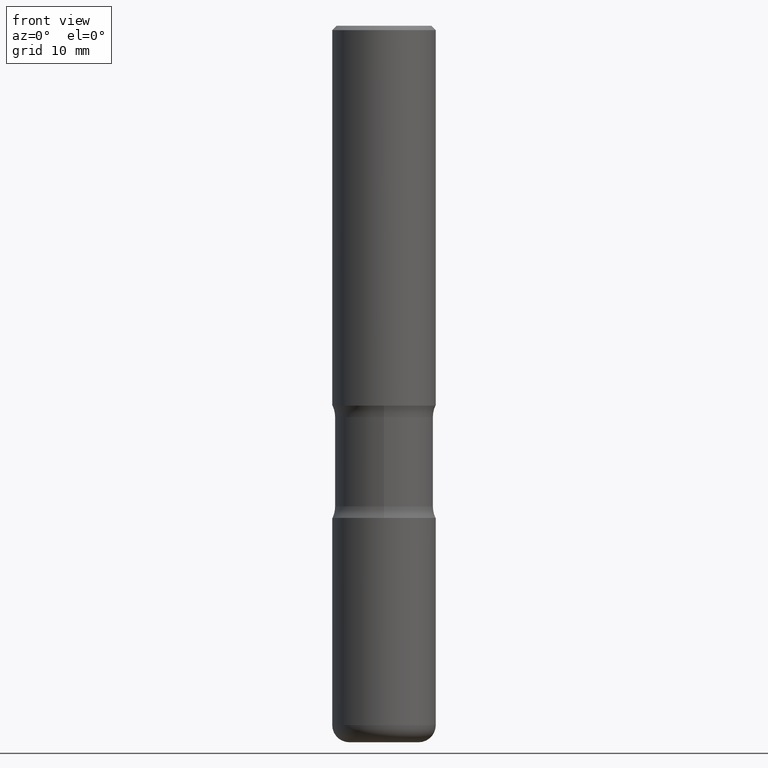
[diagram: clean part render]
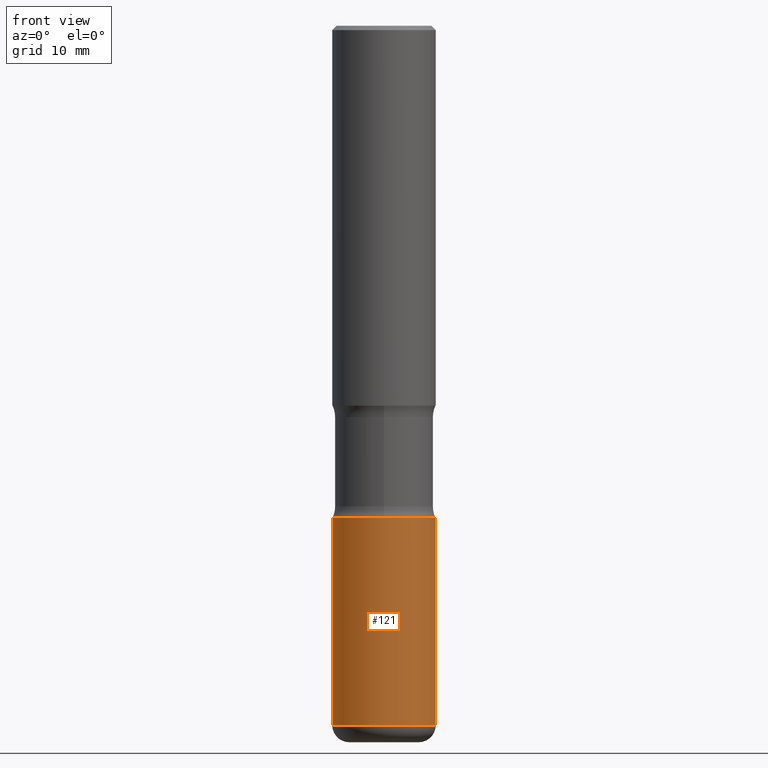
[diagram: same view with one face highlighted and labeled with its STEP entity id]
A machine part, front view. The second image highlights one B-rep face of the part: STEP entity #121.
In plain terms, the highlighted cylindrical surface (partial cylindrical patch) has radius 5.9995 mm, axis along (-0, 0, 1).
Its self-contained STEP definition (entity closure, byte-faithful):
#17 = CYLINDRICAL_SURFACE ( 'NONE', #95, 0.2362000000000004651 ) ;
#26 = VECTOR ( 'NONE', #410, 39.37007874015748143 ) ;
#37 = VERTEX_POINT ( 'NONE', #167 ) ;
#38 = VERTEX_POINT ( 'NONE', #211 ) ;
#45 = DIRECTION ( 'NONE',  ( -2.445468806185136597E-29, 3.491481338843145583E-15, 1.000000000000000000 ) ) ;
#52 = DIRECTION ( 'NONE',  ( 1.000000000000000000, -6.982962677686264344E-15, 0.000000000000000000 ) ) ;
#62 = DIRECTION ( 'NONE',  ( -2.445468806185136597E-29, 3.491481338843145583E-15, 1.000000000000000000 ) ) ;
#77 = CARTESIAN_POINT ( 'NONE',  ( 7.798600022924401307E-29, -1.113433398957079310E-14, -3.189000000000000501 ) ) ;
#82 = ORIENTED_EDGE ( 'NONE', *, *, #189, .F. ) ;
#95 = AXIS2_PLACEMENT_3D ( 'NONE', #267, #132, #316 ) ;
#110 = CARTESIAN_POINT ( 'NONE',  ( 0.2362000000000004651, -1.649375784469499483E-15, 1.151752954443002330E-29 ) ) ;
#121 = ADVANCED_FACE ( 'NONE', ( #188 ), #17, .T. ) ;
#132 = DIRECTION ( 'NONE',  ( -2.445468806185136597E-29, 3.491481338843145583E-15, 1.000000000000000000 ) ) ;
#167 = CARTESIAN_POINT ( 'NONE',  ( 0.2362000000000006317, -1.278370977404029278E-14, -3.189000000000000501 ) ) ;
#188 = FACE_OUTER_BOUND ( 'NONE', #234, .T. ) ;
#189 = EDGE_CURVE ( 'NONE', #206, #38, #260, .T. ) ;
#195 = ORIENTED_EDGE ( 'NONE', *, *, #259, .T. ) ;
#206 = VERTEX_POINT ( 'NONE', #522 ) ;
#211 = CARTESIAN_POINT ( 'NONE',  ( -0.2362000000000004374, -7.806481689168991326E-15, -2.244100000000001760 ) ) ;
#225 = EDGE_CURVE ( 'NONE', #38, #551, #283, .T. ) ;
#231 = VECTOR ( 'NONE', #402, 39.37007874015748143 ) ;
#234 = EDGE_LOOP ( 'NONE', ( #82, #542, #195, #415 ) ) ;
#259 = EDGE_CURVE ( 'NONE', #37, #551, #500, .T. ) ;
#260 = LINE ( 'NONE', #477, #231 ) ;
#267 = CARTESIAN_POINT ( 'NONE',  ( 0.000000000000000000, 0.000000000000000000, 0.000000000000000000 ) ) ;
#283 = CIRCLE ( 'NONE', #493, 0.2362000000000004374 ) ;
#304 = AXIS2_PLACEMENT_3D ( 'NONE', #77, #45, #52 ) ;
#316 = DIRECTION ( 'NONE',  ( 1.000000000000000000, -6.982962677686266711E-15, 4.876176775795935793E-29 ) ) ;
#318 = CARTESIAN_POINT ( 'NONE',  ( 0.2362000000000004374, -9.484609056967408331E-15, -2.244100000000001760 ) ) ;
#373 = DIRECTION ( 'NONE',  ( 1.000000000000000000, -6.982962677686264344E-15, 0.000000000000000000 ) ) ;
#402 = DIRECTION ( 'NONE',  ( -2.445468806185136877E-29, 3.491481338843145188E-15, 1.000000000000000000 ) ) ;
#410 = DIRECTION ( 'NONE',  ( -2.445468806185136877E-29, 3.491481338843145188E-15, 1.000000000000000000 ) ) ;
#415 = ORIENTED_EDGE ( 'NONE', *, *, #225, .F. ) ;
#419 = CIRCLE ( 'NONE', #304, 0.2362000000000005484 ) ;
#423 = EDGE_CURVE ( 'NONE', #206, #37, #419, .T. ) ;
#477 = CARTESIAN_POINT ( 'NONE',  ( -0.2362000000000004651, 1.678301941865359944E-15, -1.161852468318210999E-29 ) ) ;
#493 = AXIS2_PLACEMENT_3D ( 'NONE', #541, #62, #373 ) ;
#500 = LINE ( 'NONE', #110, #26 ) ;
#522 = CARTESIAN_POINT ( 'NONE',  ( -0.2362000000000006317, -9.456032047705431974E-15, -3.189000000000000501 ) ) ;
#541 = CARTESIAN_POINT ( 'NONE',  ( 5.487876547960070357E-29, -7.835233272497908651E-15, -2.244100000000001760 ) ) ;
#542 = ORIENTED_EDGE ( 'NONE', *, *, #423, .T. ) ;
#551 = VERTEX_POINT ( 'NONE', #318 ) ;